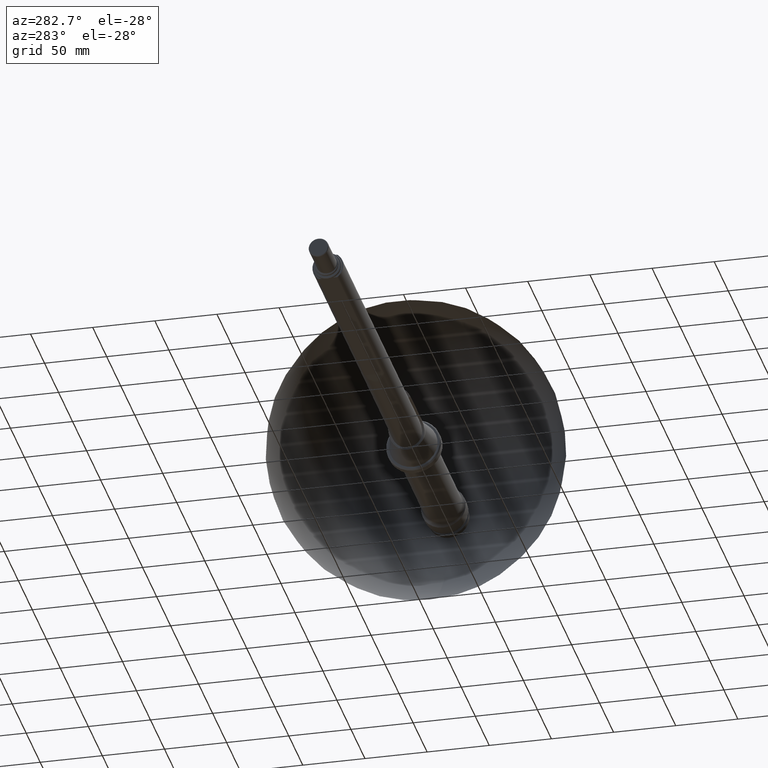
[diagram: clean part render]
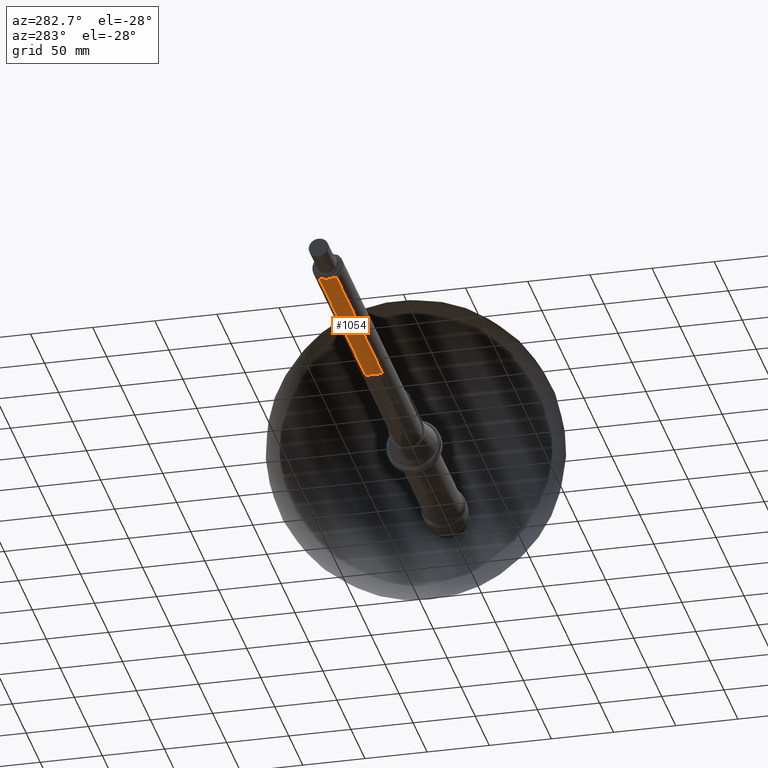
[diagram: same view with one face highlighted and labeled with its STEP entity id]
A machine part, auxiliary view. The second image highlights one B-rep face of the part: STEP entity #1054.
In plain terms, the highlighted planar face has unit normal (-0, 0, -1).
Its self-contained STEP definition (entity closure, byte-faithful):
#43=B_SPLINE_CURVE_WITH_KNOTS('',3,(#1530,#1531,#1532,#1533),
 .UNSPECIFIED.,.F.,.F.,(4,4),(6.93889390390723E-18,0.000108965616059794),
 .UNSPECIFIED.);
#44=B_SPLINE_CURVE_WITH_KNOTS('',3,(#1539,#1540,#1541,#1542),
 .UNSPECIFIED.,.F.,.F.,(4,4),(0.,0.000108965616059801),.UNSPECIFIED.);
#173=ORIENTED_EDGE('',*,*,#328,.F.);
#174=ORIENTED_EDGE('',*,*,#330,.T.);
#175=ORIENTED_EDGE('',*,*,#331,.T.);
#176=ORIENTED_EDGE('',*,*,#297,.T.);
#177=ORIENTED_EDGE('',*,*,#332,.T.);
#178=ORIENTED_EDGE('',*,*,#311,.T.);
#179=ORIENTED_EDGE('',*,*,#333,.T.);
#180=ORIENTED_EDGE('',*,*,#334,.T.);
#297=EDGE_CURVE('',#384,#383,#448,.T.);
#311=EDGE_CURVE('',#396,#397,#453,.T.);
#328=EDGE_CURVE('',#413,#414,#455,.T.);
#330=EDGE_CURVE('',#413,#415,#43,.T.);
#331=EDGE_CURVE('',#415,#384,#456,.F.);
#332=EDGE_CURVE('',#383,#396,#457,.T.);
#333=EDGE_CURVE('',#397,#416,#458,.T.);
#334=EDGE_CURVE('',#416,#414,#44,.T.);
#383=VERTEX_POINT('',#1442);
#384=VERTEX_POINT('',#1444);
#396=VERTEX_POINT('',#1478);
#397=VERTEX_POINT('',#1479);
#413=VERTEX_POINT('',#1526);
#414=VERTEX_POINT('',#1527);
#415=VERTEX_POINT('',#1534);
#416=VERTEX_POINT('',#1538);
#448=LINE('',#1443,#470);
#453=LINE('',#1477,#475);
#455=LINE('',#1525,#477);
#456=LINE('',#1535,#478);
#457=LINE('',#1536,#479);
#458=LINE('',#1537,#480);
#470=VECTOR('',#1211,1000.);
#475=VECTOR('',#1234,1000.);
#477=VECTOR('',#1294,1000.);
#478=VECTOR('',#1299,1000.);
#479=VECTOR('',#1300,1000.);
#480=VECTOR('',#1301,1000.);
#521=EDGE_LOOP('',(#173,#174,#175,#176,#177,#178,#179,#180));
#609=FACE_BOUND('',#521,.T.);
#671=PLANE('',#1141);
#1054=ADVANCED_FACE('',(#609),#671,.T.);
#1141=AXIS2_PLACEMENT_3D('',#1529,#1297,#1298);
#1211=DIRECTION('',(0.,1.,0.));
#1234=DIRECTION('',(0.,1.,0.));
#1294=DIRECTION('',(0.,1.,0.));
#1297=DIRECTION('',(-1.05134756119806E-17,0.,-1.));
#1298=DIRECTION('',(-1.,0.,1.05134756119806E-17));
#1299=DIRECTION('',(1.,0.,-1.05134756119806E-17));
#1300=DIRECTION('',(0.,1.,0.));
#1301=DIRECTION('',(1.,0.,-1.05134756119806E-17));
#1442=CARTESIAN_POINT('',(-376.,-3.36191909480274,-10.));
#1443=CARTESIAN_POINT('',(-376.,0.,-10.));
#1444=CARTESIAN_POINT('',(-376.,-6.80073525436765,-10.));
#1477=CARTESIAN_POINT('',(-376.,0.,-10.));
#1478=CARTESIAN_POINT('',(-376.,3.36191909480274,-10.));
#1479=CARTESIAN_POINT('',(-376.,6.80073525436765,-10.));
#1525=CARTESIAN_POINT('',(-211.,-23.950875296928,-10.));
#1526=CARTESIAN_POINT('',(-211.,-6.69216489691649,-10.));
#1527=CARTESIAN_POINT('',(-211.,6.69216489691648,-10.));
#1529=CARTESIAN_POINT('',(-376.,-23.950875296928,-10.));
#1530=CARTESIAN_POINT('',(-211.,-6.69216489691649,-10.));
#1531=CARTESIAN_POINT('',(-211.,-6.72861900146226,-10.));
#1532=CARTESIAN_POINT('',(-210.997052598538,-6.76482137643538,-10.));
#1533=CARTESIAN_POINT('',(-210.99072729995,-6.80073525436765,-10.));
#1534=CARTESIAN_POINT('',(-210.99072729995,-6.80073525436765,-10.));
#1535=CARTESIAN_POINT('',(-376.,-6.80073525436765,-10.));
#1536=CARTESIAN_POINT('',(-376.,-23.950875296928,-10.));
#1537=CARTESIAN_POINT('',(-211.,6.80073525436765,-10.));
#1538=CARTESIAN_POINT('',(-210.99072729995,6.80073525436765,-10.));
#1539=CARTESIAN_POINT('',(-210.99072729995,6.80073525436765,-10.));
#1540=CARTESIAN_POINT('',(-210.997052598538,6.76482137643538,-10.));
#1541=CARTESIAN_POINT('',(-211.,6.72861900146228,-10.));
#1542=CARTESIAN_POINT('',(-211.,6.6921648969165,-10.));